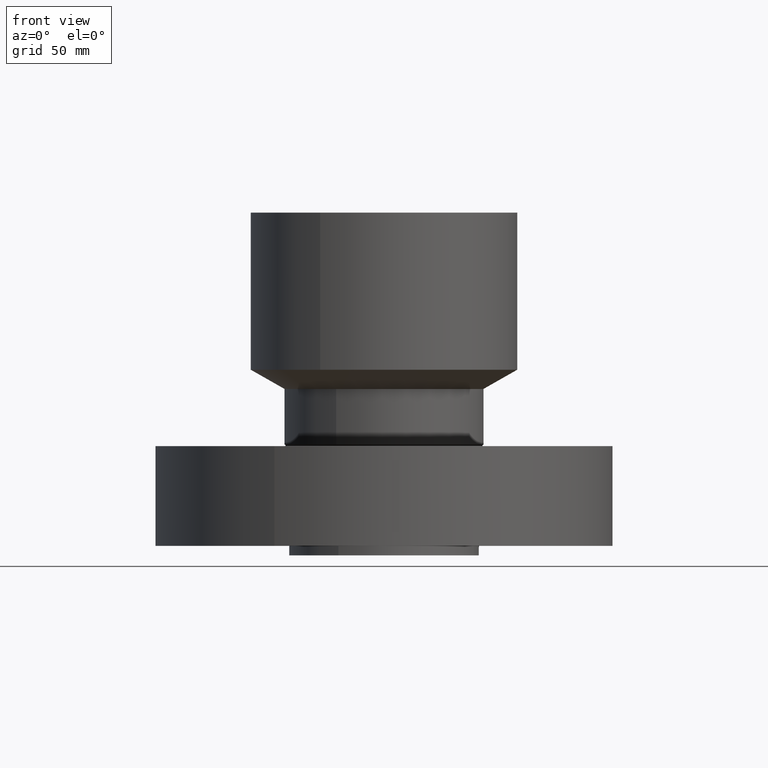
[diagram: clean part render]
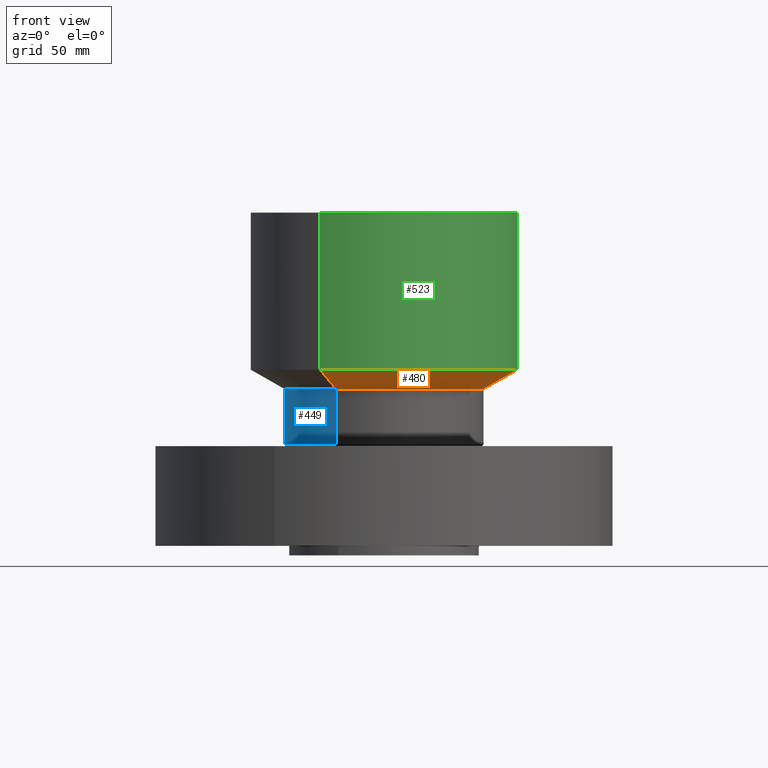
[diagram: same view with three faces highlighted in distinct colors, each labeled with its STEP entity id]
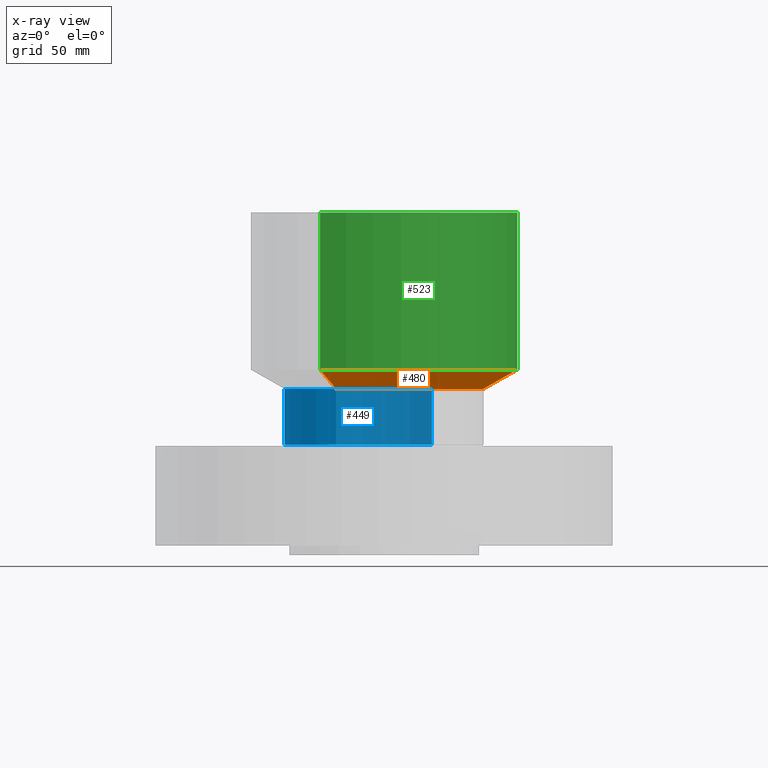
[diagram: x-ray of the same camera — body ghosted, the three highlighted faces saturated]
A machine part, front view with three faces highlighted in distinct colors.
The next image is the same camera in x-ray (body ghosted, the three faces saturated) — at least one of them is partly hidden behind the body in this view.
Their STEP definitions:

[orange] entity #480 — the highlighted conical surface has half-angle 60 deg.
#421=AXIS2_PLACEMENT_3D('Circle Axis2P3D',#419,#420,$) ;
#453=AXIS2_PLACEMENT_3D('Cone Axis2P3D',#450,#451,#452) ;
#464=AXIS2_PLACEMENT_3D('Circle Axis2P3D',#462,#463,$) ;
#416=CARTESIAN_POINT('Vertex',(1.25849203884,2.30365422497,4.12000000002)) ;
#419=CARTESIAN_POINT('Axis2P3D Location',(0.,0.,4.12000000002)) ;
#423=CARTESIAN_POINT('Vertex',(-1.25849203884,-2.30365422497,4.12000000002)) ;
#450=CARTESIAN_POINT('Axis2P3D Location',(0.,0.,4.12000000002)) ;
#455=CARTESIAN_POINT('Line Origine',(1.46824071198,2.6875965958,4.37259074279)) ;
#459=CARTESIAN_POINT('Vertex',(1.67798938512,3.07153896663,4.62518148556)) ;
#462=CARTESIAN_POINT('Axis2P3D Location',(0.,0.,4.62518148556)) ;
#466=CARTESIAN_POINT('Vertex',(-1.67798938512,-3.07153896663,4.62518148556)) ;
#469=CARTESIAN_POINT('Line Origine',(-1.46824071198,-2.6875965958,4.37259074279)) ;
#420=DIRECTION('Axis2P3D Direction',(0.,0.,-0.0393700787402)) ;
#451=DIRECTION('Axis2P3D Direction',(-0.,-0.,0.0393700787402)) ;
#452=DIRECTION('Axis2P3D XDirection',(0.0188750212049,0.0345504945626,0.)) ;
#456=DIRECTION('Vector Direction',(0.0163462478604,0.0299216060045,0.0196850393701)) ;
#463=DIRECTION('Axis2P3D Direction',(-0.,0.,0.0393700787402)) ;
#470=DIRECTION('Vector Direction',(-0.0163462478604,-0.0299216060045,0.0196850393701)) ;
#457=VECTOR('Line Direction',#456,0.0393700787402) ;
#471=VECTOR('Line Direction',#470,0.0393700787402) ;
#475=ORIENTED_EDGE('',*,*,#425,.F.) ;
#476=ORIENTED_EDGE('',*,*,#461,.T.) ;
#477=ORIENTED_EDGE('',*,*,#468,.T.) ;
#478=ORIENTED_EDGE('',*,*,#473,.F.) ;
#480=ADVANCED_FACE('PartBody',(#479),#454,.T.) ;
#422=CIRCLE('generated circle',#421,2.62500000001) ;
#465=CIRCLE('generated circle',#464,3.50000000001) ;
#454=CONICAL_SURFACE('Cone',#453,2.62500000001,1.0471975512) ;
#425=EDGE_CURVE('',#417,#424,#422,.T.) ;
#461=EDGE_CURVE('',#417,#460,#458,.T.) ;
#468=EDGE_CURVE('',#460,#467,#465,.F.) ;
#473=EDGE_CURVE('',#424,#467,#472,.T.) ;
#474=EDGE_LOOP('',(#475,#476,#477,#478)) ;
#479=FACE_OUTER_BOUND('',#474,.T.) ;
#458=LINE('Line',#455,#457) ;
#472=LINE('Line',#469,#471) ;
#417=VERTEX_POINT('',#416) ;
#424=VERTEX_POINT('',#423) ;
#460=VERTEX_POINT('',#459) ;
#467=VERTEX_POINT('',#466) ;

[blue] entity #449 — the highlighted cylindrical surface (partial cylindrical patch) has radius 66.675 mm, axis along (0, 0, -1).
#397=AXIS2_PLACEMENT_3D('Circle Axis2P3D',#395,#396,$) ;
#410=AXIS2_PLACEMENT_3D('Cylinder Axis2P3D',#407,#408,#409) ;
#440=AXIS2_PLACEMENT_3D('Circle Axis2P3D',#438,#439,$) ;
#373=CARTESIAN_POINT('Vertex',(1.25849203884,2.30365422497,2.66098076212)) ;
#380=CARTESIAN_POINT('Vertex',(-1.25849203884,-2.30365422497,2.66098076212)) ;
#395=CARTESIAN_POINT('Axis2P3D Location',(0.,0.,2.66098076212)) ;
#407=CARTESIAN_POINT('Axis2P3D Location',(0.,0.,4.25000000002)) ;
#412=CARTESIAN_POINT('Line Origine',(1.25849203884,2.30365422497,3.39049038107)) ;
#416=CARTESIAN_POINT('Vertex',(1.25849203884,2.30365422497,4.12000000002)) ;
#423=CARTESIAN_POINT('Vertex',(-1.25849203884,-2.30365422497,4.12000000002)) ;
#426=CARTESIAN_POINT('Line Origine',(-1.25849203884,-2.30365422497,3.39049038107)) ;
#438=CARTESIAN_POINT('Axis2P3D Location',(0.,0.,4.12000000002)) ;
#396=DIRECTION('Axis2P3D Direction',(-0.,0.,0.0393700787402)) ;
#408=DIRECTION('Axis2P3D Direction',(0.,0.,-0.0393700787402)) ;
#409=DIRECTION('Axis2P3D XDirection',(-0.0188750212049,-0.0345504945626,0.)) ;
#413=DIRECTION('Vector Direction',(0.,0.,-0.0393700787402)) ;
#427=DIRECTION('Vector Direction',(0.,0.,-0.0393700787402)) ;
#439=DIRECTION('Axis2P3D Direction',(0.,0.,-0.0393700787402)) ;
#414=VECTOR('Line Direction',#413,0.0393700787402) ;
#428=VECTOR('Line Direction',#427,0.0393700787402) ;
#444=ORIENTED_EDGE('',*,*,#399,.F.) ;
#445=ORIENTED_EDGE('',*,*,#430,.T.) ;
#446=ORIENTED_EDGE('',*,*,#442,.T.) ;
#447=ORIENTED_EDGE('',*,*,#418,.F.) ;
#449=ADVANCED_FACE('PartBody',(#448),#411,.T.) ;
#398=CIRCLE('generated circle',#397,2.62500000001) ;
#441=CIRCLE('generated circle',#440,2.62500000001) ;
#411=CYLINDRICAL_SURFACE('generated cylinder',#410,2.62500000001) ;
#399=EDGE_CURVE('',#381,#374,#398,.F.) ;
#418=EDGE_CURVE('',#374,#417,#415,.F.) ;
#430=EDGE_CURVE('',#381,#424,#429,.F.) ;
#442=EDGE_CURVE('',#424,#417,#441,.T.) ;
#443=EDGE_LOOP('',(#444,#445,#446,#447)) ;
#448=FACE_OUTER_BOUND('',#443,.T.) ;
#415=LINE('Line',#412,#414) ;
#429=LINE('Line',#426,#428) ;
#374=VERTEX_POINT('',#373) ;
#381=VERTEX_POINT('',#380) ;
#417=VERTEX_POINT('',#416) ;
#424=VERTEX_POINT('',#423) ;

[green] entity #523 — the highlighted cylindrical surface (partial cylindrical patch) has radius 88.9 mm, axis along (0, 0, -1).
#464=AXIS2_PLACEMENT_3D('Circle Axis2P3D',#462,#463,$) ;
#496=AXIS2_PLACEMENT_3D('Cylinder Axis2P3D',#493,#494,#495) ;
#507=AXIS2_PLACEMENT_3D('Circle Axis2P3D',#505,#506,$) ;
#459=CARTESIAN_POINT('Vertex',(1.67798938512,3.07153896663,4.62518148556)) ;
#462=CARTESIAN_POINT('Axis2P3D Location',(0.,0.,4.62518148556)) ;
#466=CARTESIAN_POINT('Vertex',(-1.67798938512,-3.07153896663,4.62518148556)) ;
#493=CARTESIAN_POINT('Axis2P3D Location',(0.,0.,4.25000000002)) ;
#498=CARTESIAN_POINT('Line Origine',(1.67798938512,3.07153896663,6.6875907428)) ;
#502=CARTESIAN_POINT('Vertex',(1.67798938512,3.07153896663,8.75000000003)) ;
#505=CARTESIAN_POINT('Axis2P3D Location',(0.,0.,8.75000000003)) ;
#509=CARTESIAN_POINT('Vertex',(-1.67798938512,-3.07153896663,8.75000000003)) ;
#512=CARTESIAN_POINT('Line Origine',(-1.67798938512,-3.07153896663,6.6875907428)) ;
#463=DIRECTION('Axis2P3D Direction',(-0.,0.,0.0393700787402)) ;
#494=DIRECTION('Axis2P3D Direction',(0.,0.,-0.0393700787402)) ;
#495=DIRECTION('Axis2P3D XDirection',(-0.0188750212049,-0.0345504945626,0.)) ;
#499=DIRECTION('Vector Direction',(0.,0.,-0.0393700787402)) ;
#506=DIRECTION('Axis2P3D Direction',(0.,0.,-0.0393700787402)) ;
#513=DIRECTION('Vector Direction',(0.,0.,-0.0393700787402)) ;
#500=VECTOR('Line Direction',#499,0.0393700787402) ;
#514=VECTOR('Line Direction',#513,0.0393700787402) ;
#518=ORIENTED_EDGE('',*,*,#468,.F.) ;
#519=ORIENTED_EDGE('',*,*,#504,.T.) ;
#520=ORIENTED_EDGE('',*,*,#511,.T.) ;
#521=ORIENTED_EDGE('',*,*,#516,.F.) ;
#523=ADVANCED_FACE('PartBody',(#522),#497,.T.) ;
#465=CIRCLE('generated circle',#464,3.50000000001) ;
#508=CIRCLE('generated circle',#507,3.50000000001) ;
#497=CYLINDRICAL_SURFACE('generated cylinder',#496,3.50000000001) ;
#468=EDGE_CURVE('',#460,#467,#465,.F.) ;
#504=EDGE_CURVE('',#460,#503,#501,.F.) ;
#511=EDGE_CURVE('',#503,#510,#508,.T.) ;
#516=EDGE_CURVE('',#467,#510,#515,.F.) ;
#517=EDGE_LOOP('',(#518,#519,#520,#521)) ;
#522=FACE_OUTER_BOUND('',#517,.T.) ;
#501=LINE('Line',#498,#500) ;
#515=LINE('Line',#512,#514) ;
#460=VERTEX_POINT('',#459) ;
#467=VERTEX_POINT('',#466) ;
#503=VERTEX_POINT('',#502) ;
#510=VERTEX_POINT('',#509) ;